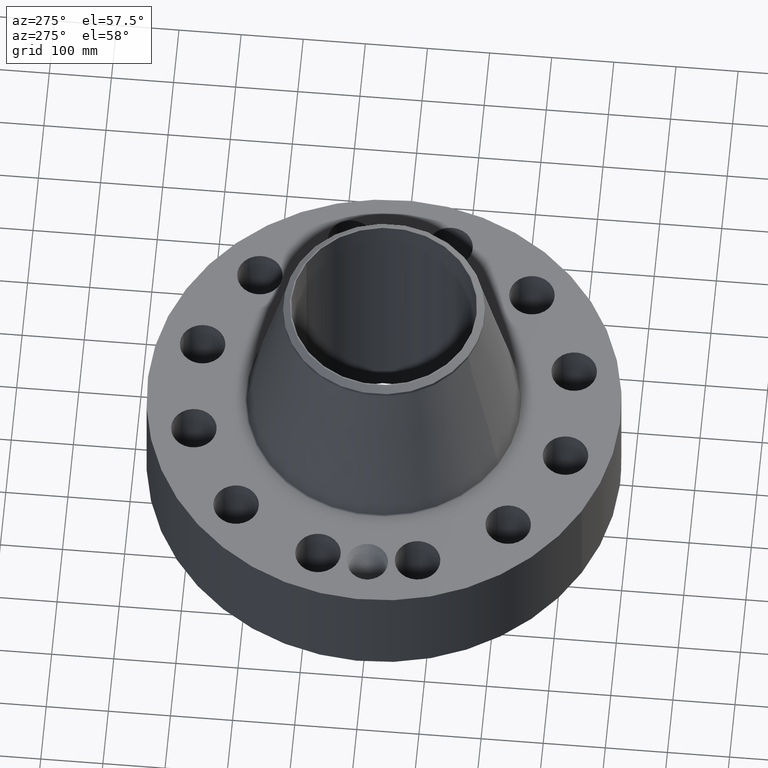
[diagram: clean part render]
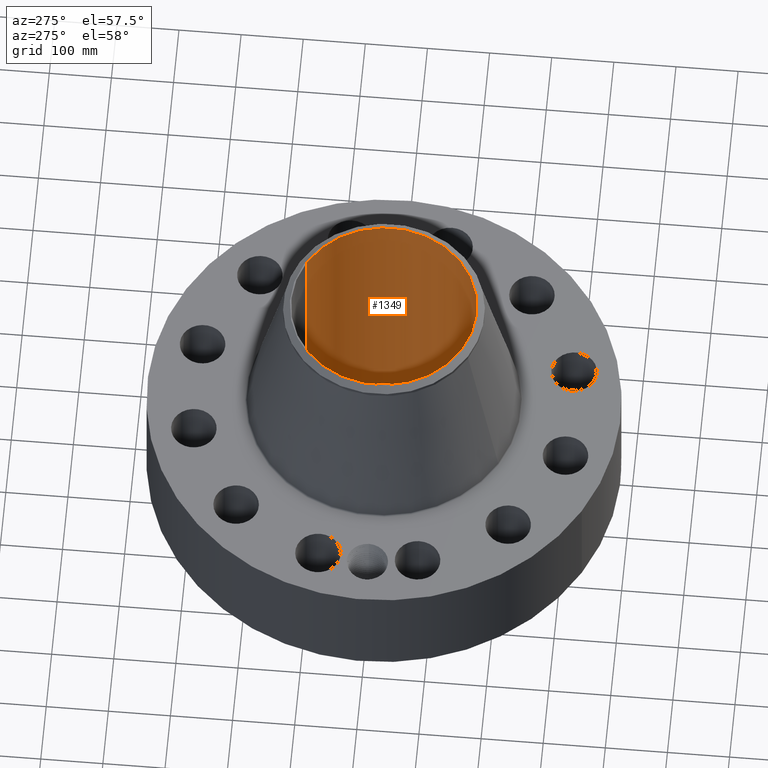
[diagram: same view with one face highlighted and labeled with its STEP entity id]
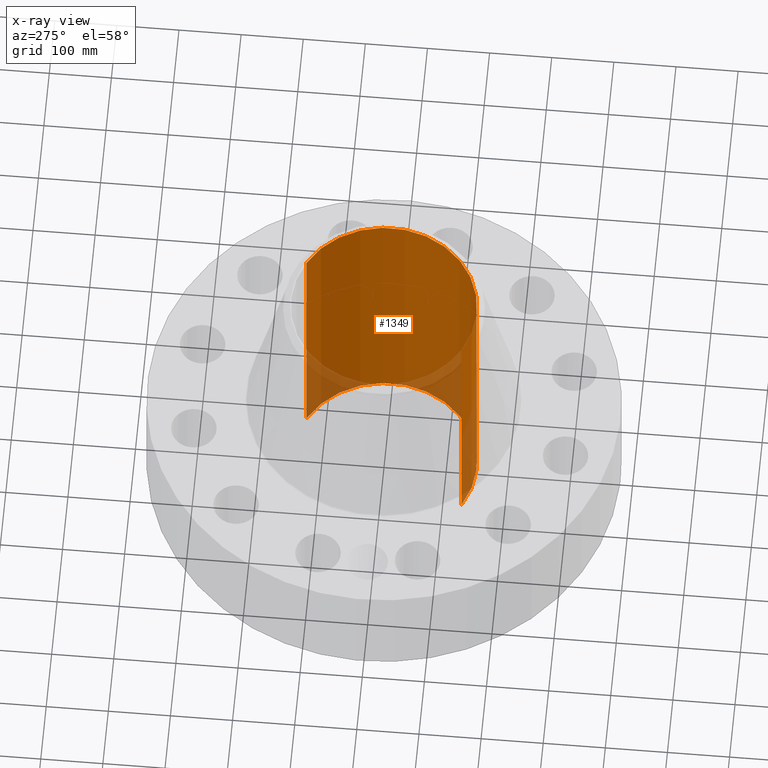
[diagram: x-ray of the same camera — body ghosted, the highlighted face saturated]
A machine part, auxiliary view. The second image highlights one B-rep face of the part: STEP entity #1349.
The next image is the same camera in x-ray: the body ghosted, the highlighted face saturated — about 16% of this face is hidden behind the body in this view.
In plain terms, the highlighted cylindrical surface (partial cylindrical patch) has radius 149.225 mm, axis along (0, 0, -1).
Its self-contained STEP definition (entity closure, byte-faithful):
#260=AXIS2_PLACEMENT_3D('Circle Axis2P3D',#258,#259,$) ;
#1280=AXIS2_PLACEMENT_3D('Cylinder Axis2P3D',#1277,#1278,#1279) ;
#1284=AXIS2_PLACEMENT_3D('Circle Axis2P3D',#1282,#1283,$) ;
#258=CARTESIAN_POINT('Axis2P3D Location',(0.,0.,0.250000000001)) ;
#262=CARTESIAN_POINT('Vertex',(2.81662503931,5.15579755113,0.250000000001)) ;
#264=CARTESIAN_POINT('Vertex',(-2.81662503931,-5.15579755113,0.250000000001)) ;
#1277=CARTESIAN_POINT('Axis2P3D Location',(0.,0.,9.37500000004)) ;
#1282=CARTESIAN_POINT('Axis2P3D Location',(0.,0.,18.5000000001)) ;
#1286=CARTESIAN_POINT('Vertex',(2.81662503931,5.15579755113,18.5000000001)) ;
#1288=CARTESIAN_POINT('Vertex',(-2.81662503931,-5.15579755113,18.5000000001)) ;
#1291=CARTESIAN_POINT('Line Origine',(2.81662503931,5.15579755113,9.37500000004)) ;
#1296=CARTESIAN_POINT('Line Origine',(-2.81662503931,-5.15579755113,9.37500000004)) ;
#1308=CARTESIAN_POINT('Control Point',(0.219395640473,-5.87090202211,0.820143615352)) ;
#1309=CARTESIAN_POINT('Control Point',(0.206921639431,-5.8713681756,0.797310109603)) ;
#1310=CARTESIAN_POINT('Control Point',(0.191477831804,-5.87191213486,0.776100626495)) ;
#1311=CARTESIAN_POINT('Control Point',(0.173344109102,-5.87249188442,0.757028515633)) ;
#1312=CARTESIAN_POINT('Control Point',(0.112129100329,-5.87416886917,0.707545645969)) ;
#1313=CARTESIAN_POINT('Control Point',(0.0349689357214,-5.87525840237,0.684023409894)) ;
#1314=CARTESIAN_POINT('Control Point',(-0.0195740169329,-5.87533967008,0.682387716065)) ;
#1315=CARTESIAN_POINT('Control Point',(-0.124163451765,-5.87414000251,0.707537111965)) ;
#1316=CARTESIAN_POINT('Control Point',(-0.203210766392,-5.8716575904,0.780464492284)) ;
#1317=CARTESIAN_POINT('Control Point',(-0.232183300769,-5.87043581406,0.82668850619)) ;
#1318=CARTESIAN_POINT('Control Point',(-0.255836021188,-5.86943053012,0.904841149602)) ;
#1319=CARTESIAN_POINT('Control Point',(-0.24829073288,-5.86975095003,0.9842205929)) ;
#1320=CARTESIAN_POINT('Control Point',(-0.242056767283,-5.87001955897,1.01079582311)) ;
#1321=CARTESIAN_POINT('Control Point',(-0.232320363278,-5.87041902515,1.03619783825)) ;
#1322=CARTESIAN_POINT('Control Point',(-0.219395640473,-5.87090202211,1.05985638466)) ;
#1323=CARTESIAN_POINT('Vertex',(0.219395640473,-5.87090202211,0.820143615352)) ;
#1325=CARTESIAN_POINT('Vertex',(-0.219395640473,-5.87090202211,1.05985638466)) ;
#1329=CARTESIAN_POINT('Control Point',(-0.219395640473,-5.87090202211,1.05985638466)) ;
#1330=CARTESIAN_POINT('Control Point',(-0.206921639423,-5.8713681756,1.08268989042)) ;
#1331=CARTESIAN_POINT('Control Point',(-0.191477831785,-5.87191213487,1.10389937354)) ;
#1332=CARTESIAN_POINT('Control Point',(-0.173344109129,-5.87249188441,1.12297148435)) ;
#1333=CARTESIAN_POINT('Control Point',(-0.112129100354,-5.87416886917,1.17245435403)) ;
#1334=CARTESIAN_POINT('Control Point',(-0.0349689357404,-5.87525840237,1.19597659011)) ;
#1335=CARTESIAN_POINT('Control Point',(0.0195740169502,-5.87533967008,1.19761228394)) ;
#1336=CARTESIAN_POINT('Control Point',(0.124163451785,-5.87414000251,1.17246288803)) ;
#1337=CARTESIAN_POINT('Control Point',(0.203210766413,-5.8716575904,1.09953550771)) ;
#1338=CARTESIAN_POINT('Control Point',(0.23218330076,-5.87043581406,1.05331149385)) ;
#1339=CARTESIAN_POINT('Control Point',(0.25583602119,-5.86943053012,0.975158850421)) ;
#1340=CARTESIAN_POINT('Control Point',(0.24829073288,-5.86975095003,0.895779407107)) ;
#1341=CARTESIAN_POINT('Control Point',(0.242056767283,-5.87001955897,0.869204176902)) ;
#1342=CARTESIAN_POINT('Control Point',(0.232320363279,-5.87041902515,0.843802161754)) ;
#1343=CARTESIAN_POINT('Control Point',(0.219395640473,-5.87090202211,0.820143615352)) ;
#259=DIRECTION('Axis2P3D Direction',(0.,0.,-0.0393700787402)) ;
#1278=DIRECTION('Axis2P3D Direction',(0.,0.,-0.0393700787402)) ;
#1279=DIRECTION('Axis2P3D XDirection',(-0.0188750212049,-0.0345504945626,0.)) ;
#1283=DIRECTION('Axis2P3D Direction',(0.,0.,-0.0393700787402)) ;
#1292=DIRECTION('Vector Direction',(0.,0.,-0.0393700787402)) ;
#1297=DIRECTION('Vector Direction',(0.,0.,-0.0393700787402)) ;
#1293=VECTOR('Line Direction',#1292,0.0393700787402) ;
#1298=VECTOR('Line Direction',#1297,0.0393700787402) ;
#1302=ORIENTED_EDGE('',*,*,#1290,.F.) ;
#1303=ORIENTED_EDGE('',*,*,#1295,.T.) ;
#1304=ORIENTED_EDGE('',*,*,#266,.T.) ;
#1305=ORIENTED_EDGE('',*,*,#1300,.F.) ;
#1346=ORIENTED_EDGE('',*,*,#1327,.F.) ;
#1347=ORIENTED_EDGE('',*,*,#1344,.F.) ;
#1348=FACE_BOUND('',#1345,.T.) ;
#1349=ADVANCED_FACE('PartBody',(#1306,#1348),#1281,.F.) ;
#1307=B_SPLINE_CURVE_WITH_KNOTS('',5,(#1308,#1309,#1310,#1311,#1312,#1313,#1314,#1315,#1316,#1317,#1318,#1319,#1320,#1321,#1322),.UNSPECIFIED.,.F.,.U.,(6,3,3,3,6),(0.,4.67383116848,14.0224065357,23.3724124452,28.2151226616),.UNSPECIFIED.) ;
#1328=B_SPLINE_CURVE_WITH_KNOTS('',5,(#1329,#1330,#1331,#1332,#1333,#1334,#1335,#1336,#1337,#1338,#1339,#1340,#1341,#1342,#1343),.UNSPECIFIED.,.F.,.U.,(6,3,3,3,6),(0.,4.67383117146,14.022406537,23.3724124491,28.2151226656),.UNSPECIFIED.) ;
#261=CIRCLE('generated circle',#260,5.87500000002) ;
#1285=CIRCLE('generated circle',#1284,5.87500000002) ;
#1281=CYLINDRICAL_SURFACE('generated cylinder',#1280,5.87500000002) ;
#266=EDGE_CURVE('',#263,#265,#261,.T.) ;
#1290=EDGE_CURVE('',#1287,#1289,#1285,.T.) ;
#1295=EDGE_CURVE('',#1287,#263,#1294,.T.) ;
#1300=EDGE_CURVE('',#1289,#265,#1299,.T.) ;
#1327=EDGE_CURVE('',#1324,#1326,#1307,.T.) ;
#1344=EDGE_CURVE('',#1326,#1324,#1328,.T.) ;
#1301=EDGE_LOOP('',(#1302,#1303,#1304,#1305)) ;
#1345=EDGE_LOOP('',(#1346,#1347)) ;
#1306=FACE_OUTER_BOUND('',#1301,.T.) ;
#1294=LINE('Line',#1291,#1293) ;
#1299=LINE('Line',#1296,#1298) ;
#263=VERTEX_POINT('',#262) ;
#265=VERTEX_POINT('',#264) ;
#1287=VERTEX_POINT('',#1286) ;
#1289=VERTEX_POINT('',#1288) ;
#1324=VERTEX_POINT('',#1323) ;
#1326=VERTEX_POINT('',#1325) ;